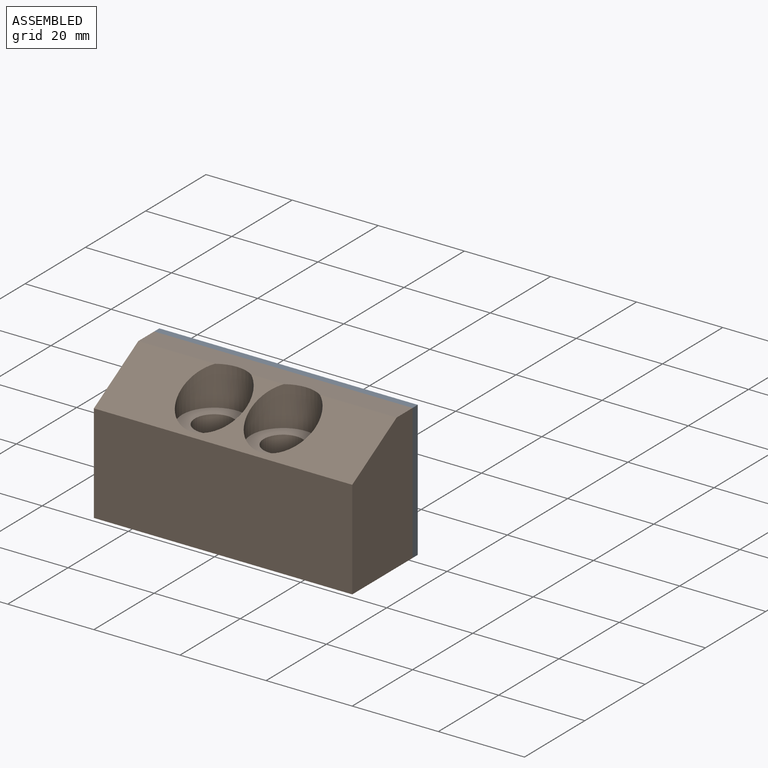
[diagram: assembled view]
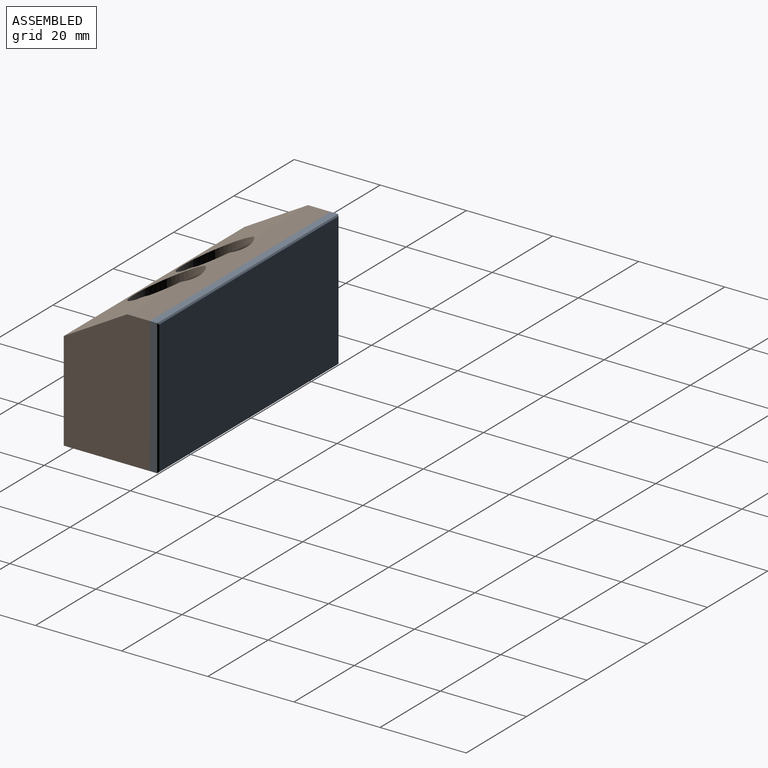
[diagram: assembled view, second angle]
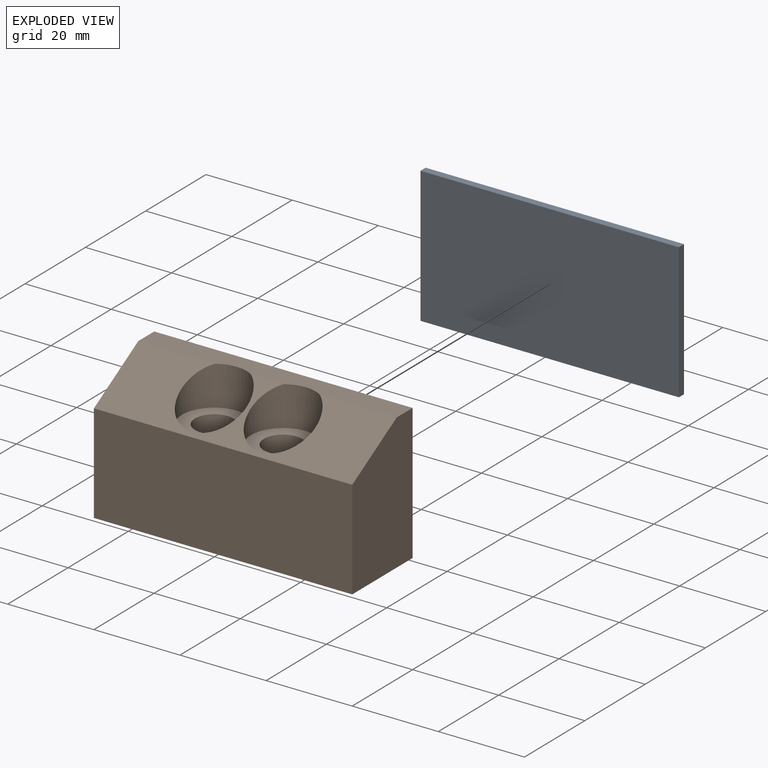
[diagram: exploded view]
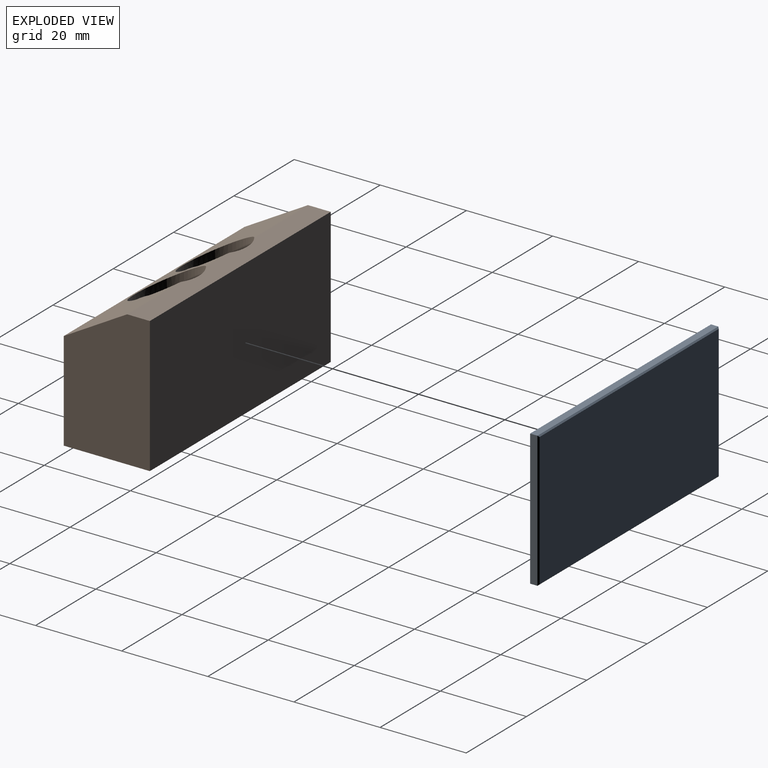
[diagram: exploded view, second angle]
ASSEMBLY  parts=2 mates=3
PART A: 10 faces, bbox 60x2x31.5 mm
  f0: plane 60x1.7mm, normal (0,0,1), area 102mm2, adj f1,f3,f5,f6
  f1: plane 31.5x1.7mm, normal (-1,0,0), area 53.5mm2, adj f0,f2,f5,f7
  f2: plane 60x1.7mm, normal (0,0,-1), area 102mm2, adj f1,f3,f5,f9
  f3: plane 31.5x1.7mm, normal (1,0,0), area 53.5mm2, adj f0,f2,f5,f8
  f4: plane 59.4x30.9mm, normal (0,-1,0), area 1835.5mm2, adj f6,f7,f8,f9
  f5: plane 60x31.5mm, normal (0,1,0), area 1890mm2, adj f0,f1,f2,f3
  f6: plane 60x0.3mm, normal (0,-0.71,0.71), area 25.3mm2, adj f0,f4,f7,f8
  f7: plane 31.5x0.3mm, normal (-0.71,-0.71,0), area 13.2mm2, adj f1,f4,f6,f9
  f8: plane 31.5x0.3mm, normal (0.71,-0.71,0), area 13.2mm2, adj f3,f4,f6,f9
  f9: plane 60x0.3mm, normal (0,-0.71,-0.71), area 25.3mm2, adj f2,f4,f7,f8
PART B: 13 faces, bbox 60.5x20.5x32 mm
  f0: plane 60.49x15.21mm, normal (0,-0.5,0.87), area 628.7mm2, adj f1,f4,f5,f6,f8,f11
  f1: plane 60x23mm, normal (0,-1,0), area 1380mm2, adj f0,f2,f5,f6
  f2: plane 60x20mm, normal (0,0,-1), area 1072.8mm2, adj f1,f3,f5,f6,f7,f10
  f3: plane 60x31.5mm, normal (0,1,0), area 1890mm2, adj f2,f4,f5,f6
  f4: plane 60x5.28mm, normal (0,0,1), area 302.1mm2, adj f0,f3,f5,f6,f8,f11
  f5: plane 31.5x20mm, normal (1,0,0), area 567.4mm2, adj f0,f1,f2,f3,f4
  f6: plane 31.5x20mm, normal (-1,0,0), area 567.4mm2, adj f0,f1,f2,f3,f4
  f7: cylinder r=4.5mm len=22.3mm, axis (0,0,1), area 630.5mm2, adj f2,f9
  f8: cylinder r=7.5mm len=15mm, axis (0,0,1), area 258.7mm2, adj f0,f4,f9
  f9: plane 15x15mm, normal (0,0,1), area 113.1mm2, adj f7,f8
  f10: cylinder r=4.5mm len=22.3mm, axis (0,0,1), area 630.5mm2, adj f2,f12
  f11: cylinder r=7.5mm len=15mm, axis (0,0,1), area 258.7mm2, adj f0,f4,f12
  f12: plane 15x15mm, normal (0,0,1), area 113.1mm2, adj f10,f11
PLACE A rot(axis=(-1,0,0),180deg) t=(-37.5,-0.71,33.57)mm
PLACE B t=(-37.5,-0.71,2.07)mm
MATE planar A.f5 <-> B.f3  axis (0,-1,0) through (-37.5,-0.71,17.82)mm
MATE planar B.f5 <-> A.f3  axis (1,0,0) through (-7.5,-10.15,16.4)mm
MATE planar A.f2 <-> B.f4  axis (0,0,1) through (-37.5,0.14,33.57)mm
